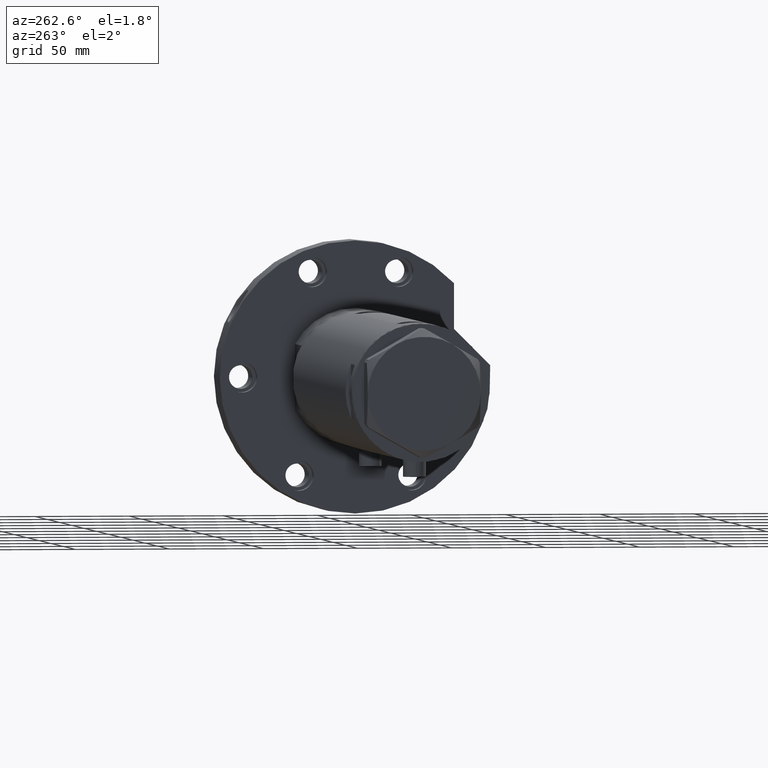
[diagram: clean part render]
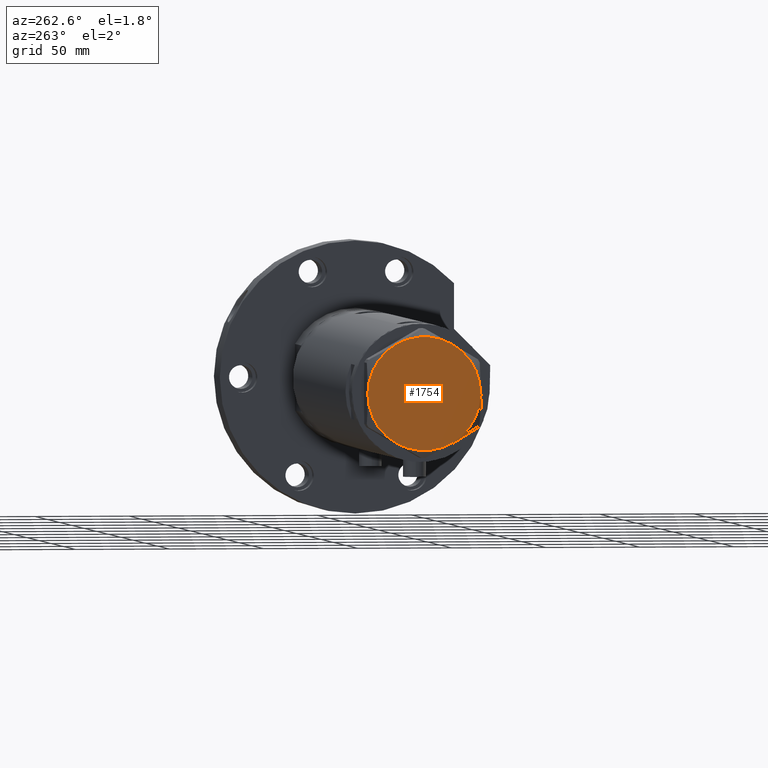
[diagram: same view with one face highlighted and labeled with its STEP entity id]
A machine part, auxiliary view. The second image highlights one B-rep face of the part: STEP entity #1754.
In plain terms, the highlighted planar face has unit normal (-1, -0, 0).
Its self-contained STEP definition (entity closure, byte-faithful):
#99 = CIRCLE ( 'NONE', #1476, 30.00000000000000000 ) ;
#267 = VERTEX_POINT ( 'NONE', #5341 ) ;
#359 = DIRECTION ( 'NONE',  ( 0.000000000000000000, 0.000000000000000000, 1.000000000000000000 ) ) ;
#437 = DIRECTION ( 'NONE',  ( 1.000000000000000000, 0.000000000000000000, 0.000000000000000000 ) ) ;
#713 = DIRECTION ( 'NONE',  ( 0.000000000000000000, 0.000000000000000000, 1.000000000000000000 ) ) ;
#719 = ORIENTED_EDGE ( 'NONE', *, *, #1227, .T. ) ;
#867 = CARTESIAN_POINT ( 'NONE',  ( 0.000000000000000000, 0.000000000000000000, 14.50000000000000000 ) ) ;
#1227 = EDGE_CURVE ( 'NONE', #4414, #3343, #3070, .T. ) ;
#1476 = AXIS2_PLACEMENT_3D ( 'NONE', #2852, #359, #2748 ) ;
#1536 = VERTEX_POINT ( 'NONE', #3844 ) ;
#1654 = DIRECTION ( 'NONE',  ( 0.000000000000000000, 0.000000000000000000, 1.000000000000000000 ) ) ;
#1660 = CIRCLE ( 'NONE', #2062, 30.00000000000000000 ) ;
#1668 = CIRCLE ( 'NONE', #2469, 30.00000000000000000 ) ;
#1724 = DIRECTION ( 'NONE',  ( 1.000000000000000000, 0.000000000000000000, 0.000000000000000000 ) ) ;
#1754 = ADVANCED_FACE ( 'NONE', ( #4145 ), #2261, .T. ) ;
#1764 = DIRECTION ( 'NONE',  ( 0.000000000000000000, 0.000000000000000000, 1.000000000000000000 ) ) ;
#1819 = DIRECTION ( 'NONE',  ( 0.000000000000000000, 0.000000000000000000, 1.000000000000000000 ) ) ;
#1820 = CARTESIAN_POINT ( 'NONE',  ( 0.000000000000000000, 0.000000000000000000, 14.50000000000000000 ) ) ;
#1887 = DIRECTION ( 'NONE',  ( 1.000000000000000000, 0.000000000000000000, 0.000000000000000000 ) ) ;
#2023 = CARTESIAN_POINT ( 'NONE',  ( 14.99999999999999467, 25.98076211353316367, 14.50000000000000000 ) ) ;
#2055 = AXIS2_PLACEMENT_3D ( 'NONE', #2297, #1764, #4230 ) ;
#2062 = AXIS2_PLACEMENT_3D ( 'NONE', #1820, #3707, #1724 ) ;
#2237 = EDGE_CURVE ( 'NONE', #3160, #267, #1660, .T. ) ;
#2261 = PLANE ( 'NONE',  #2055 ) ;
#2297 = CARTESIAN_POINT ( 'NONE',  ( 0.000000000000000000, 0.000000000000000000, 14.50000000000000000 ) ) ;
#2469 = AXIS2_PLACEMENT_3D ( 'NONE', #6083, #3736, #437 ) ;
#2566 = EDGE_CURVE ( 'NONE', #3088, #4414, #3378, .T. ) ;
#2639 = EDGE_CURVE ( 'NONE', #3343, #3160, #99, .T. ) ;
#2680 = CARTESIAN_POINT ( 'NONE',  ( -14.99999999999999645, -25.98076211353316367, 14.50000000000000000 ) ) ;
#2748 = DIRECTION ( 'NONE',  ( 1.000000000000000000, 0.000000000000000000, 0.000000000000000000 ) ) ;
#2811 = ORIENTED_EDGE ( 'NONE', *, *, #2237, .T. ) ;
#2852 = CARTESIAN_POINT ( 'NONE',  ( 0.000000000000000000, 0.000000000000000000, 14.50000000000000000 ) ) ;
#3037 = ORIENTED_EDGE ( 'NONE', *, *, #4474, .T. ) ;
#3070 = CIRCLE ( 'NONE', #4847, 30.00000000000000000 ) ;
#3088 = VERTEX_POINT ( 'NONE', #2023 ) ;
#3160 = VERTEX_POINT ( 'NONE', #2680 ) ;
#3266 = EDGE_CURVE ( 'NONE', #1536, #3088, #1668, .T. ) ;
#3343 = VERTEX_POINT ( 'NONE', #4387 ) ;
#3378 = CIRCLE ( 'NONE', #5649, 30.00000000000000000 ) ;
#3707 = DIRECTION ( 'NONE',  ( 0.000000000000000000, 0.000000000000000000, 1.000000000000000000 ) ) ;
#3736 = DIRECTION ( 'NONE',  ( 0.000000000000000000, 0.000000000000000000, 1.000000000000000000 ) ) ;
#3844 = CARTESIAN_POINT ( 'NONE',  ( 30.00000000000000000, 9.013887592422954582E-15, 14.50000000000000000 ) ) ;
#3988 = AXIS2_PLACEMENT_3D ( 'NONE', #867, #1819, #1887 ) ;
#4030 = EDGE_LOOP ( 'NONE', ( #3037, #5240, #5409, #719, #5838, #2811 ) ) ;
#4065 = CARTESIAN_POINT ( 'NONE',  ( 0.000000000000000000, 0.000000000000000000, 14.50000000000000000 ) ) ;
#4068 = DIRECTION ( 'NONE',  ( 1.000000000000000000, 0.000000000000000000, 0.000000000000000000 ) ) ;
#4145 = FACE_OUTER_BOUND ( 'NONE', #4030, .T. ) ;
#4230 = DIRECTION ( 'NONE',  ( 1.000000000000000000, 0.000000000000000000, -0.000000000000000000 ) ) ;
#4253 = CARTESIAN_POINT ( 'NONE',  ( -14.99999999999999645, 25.98076211353316367, 14.50000000000000000 ) ) ;
#4387 = CARTESIAN_POINT ( 'NONE',  ( -30.00000000000000000, 0.000000000000000000, 14.50000000000000000 ) ) ;
#4414 = VERTEX_POINT ( 'NONE', #4253 ) ;
#4474 = EDGE_CURVE ( 'NONE', #267, #1536, #5774, .T. ) ;
#4553 = CARTESIAN_POINT ( 'NONE',  ( 0.000000000000000000, 0.000000000000000000, 14.50000000000000000 ) ) ;
#4847 = AXIS2_PLACEMENT_3D ( 'NONE', #4065, #713, #5515 ) ;
#5240 = ORIENTED_EDGE ( 'NONE', *, *, #3266, .T. ) ;
#5341 = CARTESIAN_POINT ( 'NONE',  ( 14.99999999999998757, -25.98076211353316722, 14.50000000000000000 ) ) ;
#5409 = ORIENTED_EDGE ( 'NONE', *, *, #2566, .T. ) ;
#5515 = DIRECTION ( 'NONE',  ( 1.000000000000000000, 0.000000000000000000, 0.000000000000000000 ) ) ;
#5649 = AXIS2_PLACEMENT_3D ( 'NONE', #4553, #1654, #4068 ) ;
#5774 = CIRCLE ( 'NONE', #3988, 30.00000000000000000 ) ;
#5838 = ORIENTED_EDGE ( 'NONE', *, *, #2639, .T. ) ;
#6083 = CARTESIAN_POINT ( 'NONE',  ( 0.000000000000000000, 0.000000000000000000, 14.50000000000000000 ) ) ;